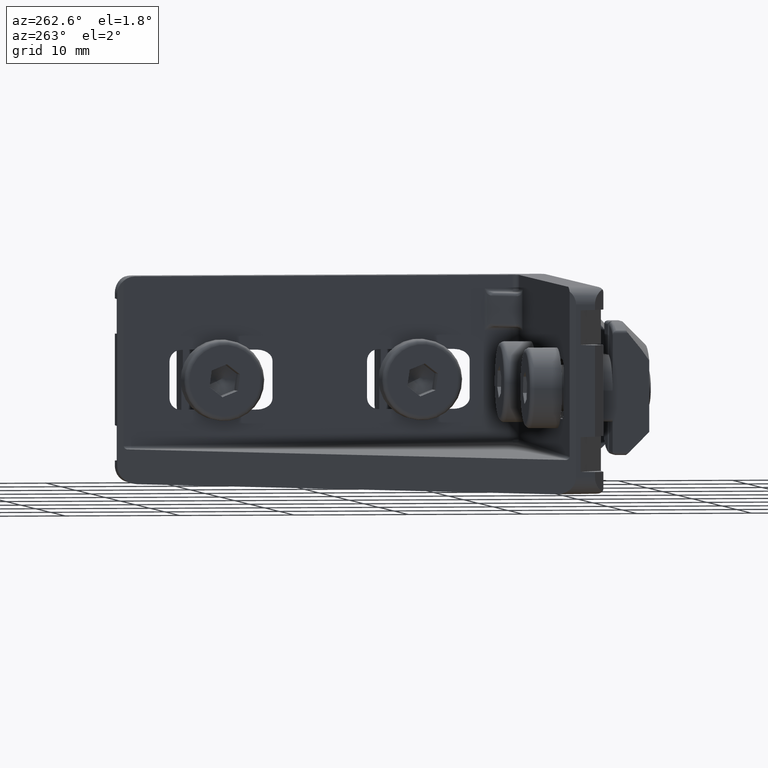
[diagram: clean part render]
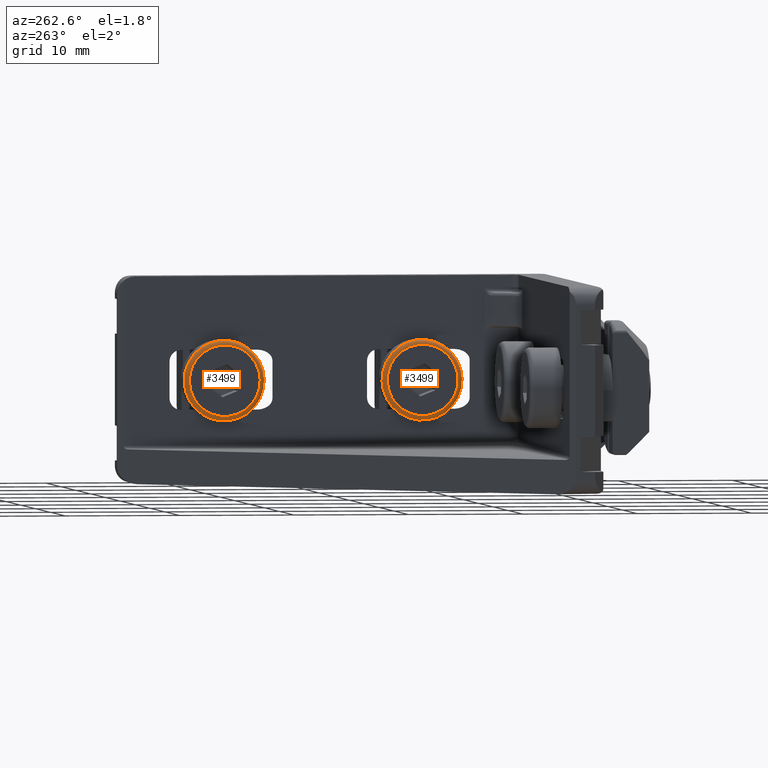
[diagram: same view with one multi-face feature highlighted, each face labeled with its STEP entity id]
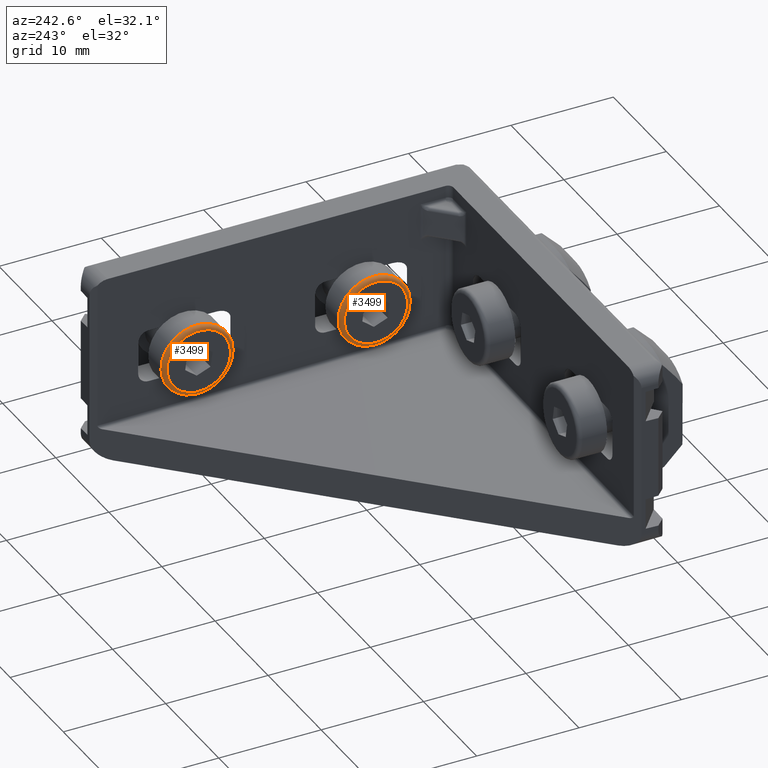
[diagram: same view with one multi-face feature highlighted, each face labeled with its STEP entity id]
A machine part, auxiliary view. The highlighted faces form ONE feature: a constant-radius fillet chain: 2 tangent blend faces with common blend radius 0.4 mm. The faces share edges in the B-rep.
A second angle (auxiliary view) of the same feature is appended — it is thin or edge-on in the first view.
Their STEP definitions:
[1] entity #3499 (Torus):
#51=TOROIDAL_SURFACE($,#3799,3.1,0.4);
#70=FACE_BOUND($,#1265,.T.);
#1060=FACE_OUTER_BOUND($,#1264,.T.);
#1264=EDGE_LOOP($,(#3089));
#1265=EDGE_LOOP($,(#3090));
#1383=CIRCLE($,#3800,3.1);
#1384=CIRCLE($,#3801,3.5);
#1722=VERTEX_POINT($,#6653);
#1723=VERTEX_POINT($,#6655);
#2190=EDGE_CURVE($,#1722,#1722,#1383,.T.);
#2191=EDGE_CURVE($,#1723,#1723,#1384,.T.);
#3089=ORIENTED_EDGE($,*,*,#2190,.T.);
#3090=ORIENTED_EDGE($,*,*,#2191,.T.);
#3499=ADVANCED_FACE($,(#1060,#70),#51,.T.);
#3799=AXIS2_PLACEMENT_3D($,#6652,#4609,#4610);
#3800=AXIS2_PLACEMENT_3D($,#6654,#4611,#4612);
#3801=AXIS2_PLACEMENT_3D($,#6656,#4613,#4614);
#4609=DIRECTION('center_axis',(1.,1.57138040785068E-017,0.));
#4610=DIRECTION('ref_axis',(0.,0.,-1.));
#4611=DIRECTION('center_axis',(1.,1.57138040785068E-017,0.));
#4612=DIRECTION('ref_axis',(1.57138040785068E-017,-1.,1.22464679914735E-016));
#4613=DIRECTION('center_axis',(-1.,-1.57138040785068E-017,0.));
#4614=DIRECTION('ref_axis',(1.98254111540206E-017,-1.,1.22464679914735E-016));
#6652=CARTESIAN_POINT('Origin',(-2.4,-1.63423562416471E-016,0.));
#6653=CARTESIAN_POINT('',(-2.8,3.1,0.));
#6654=CARTESIAN_POINT('Origin',(-2.8,-1.69709084047874E-016,0.));
#6655=CARTESIAN_POINT('',(-2.4,3.5,-8.57252759403148E-016));
#6656=CARTESIAN_POINT('Origin',(-2.4,-1.63423562416471E-016,0.));
[2] entity #3499 (Torus):
#51=TOROIDAL_SURFACE($,#3799,3.1,0.4);
#70=FACE_BOUND($,#1265,.T.);
#1060=FACE_OUTER_BOUND($,#1264,.T.);
#1264=EDGE_LOOP($,(#3089));
#1265=EDGE_LOOP($,(#3090));
#1383=CIRCLE($,#3800,3.1);
#1384=CIRCLE($,#3801,3.5);
#1722=VERTEX_POINT($,#6653);
#1723=VERTEX_POINT($,#6655);
#2190=EDGE_CURVE($,#1722,#1722,#1383,.T.);
#2191=EDGE_CURVE($,#1723,#1723,#1384,.T.);
#3089=ORIENTED_EDGE($,*,*,#2190,.T.);
#3090=ORIENTED_EDGE($,*,*,#2191,.T.);
#3499=ADVANCED_FACE($,(#1060,#70),#51,.T.);
#3799=AXIS2_PLACEMENT_3D($,#6652,#4609,#4610);
#3800=AXIS2_PLACEMENT_3D($,#6654,#4611,#4612);
#3801=AXIS2_PLACEMENT_3D($,#6656,#4613,#4614);
#4609=DIRECTION('center_axis',(1.,1.57138040785068E-017,0.));
#4610=DIRECTION('ref_axis',(0.,0.,-1.));
#4611=DIRECTION('center_axis',(1.,1.57138040785068E-017,0.));
#4612=DIRECTION('ref_axis',(1.57138040785068E-017,-1.,1.22464679914735E-016));
#4613=DIRECTION('center_axis',(-1.,-1.57138040785068E-017,0.));
#4614=DIRECTION('ref_axis',(1.98254111540206E-017,-1.,1.22464679914735E-016));
#6652=CARTESIAN_POINT('Origin',(-2.4,-1.63423562416471E-016,0.));
#6653=CARTESIAN_POINT('',(-2.8,3.1,0.));
#6654=CARTESIAN_POINT('Origin',(-2.8,-1.69709084047874E-016,0.));
#6655=CARTESIAN_POINT('',(-2.4,3.5,-8.57252759403148E-016));
#6656=CARTESIAN_POINT('Origin',(-2.4,-1.63423562416471E-016,0.));